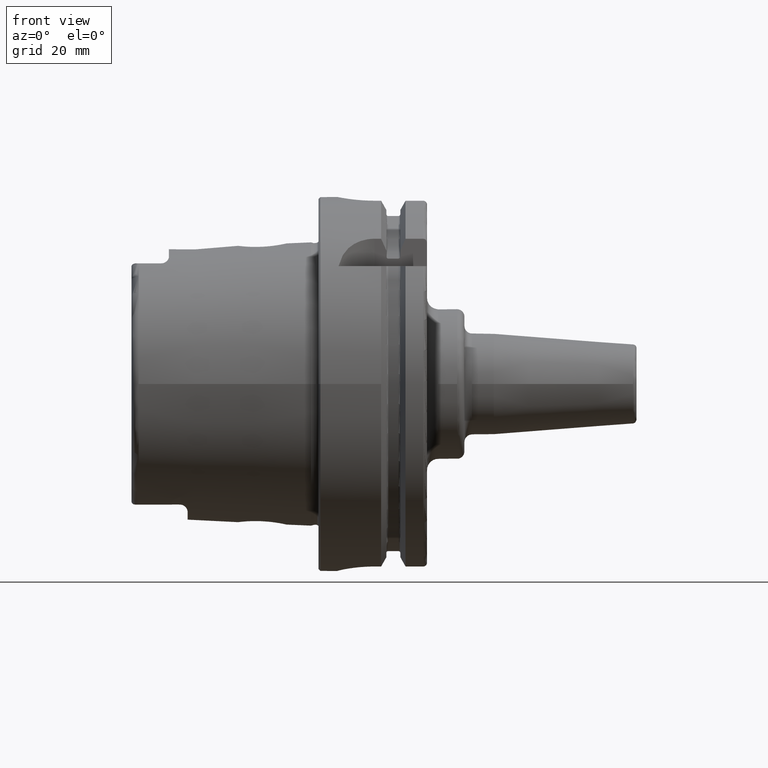
[diagram: clean part render]
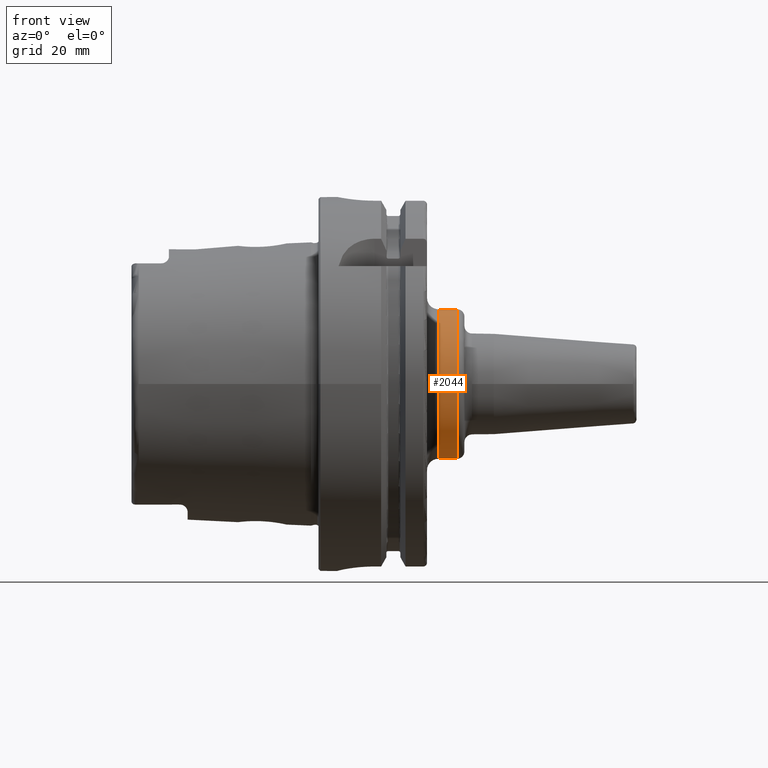
[diagram: same view with one face highlighted and labeled with its STEP entity id]
A machine part, front view. The second image highlights one B-rep face of the part: STEP entity #2044.
In plain terms, the highlighted cylindrical surface (bore or boss wall) has radius 20 mm, axis along (1, 0, 0).
Its self-contained STEP definition (entity closure, byte-faithful):
#180=CYLINDRICAL_SURFACE('',#2212,20.);
#226=FACE_OUTER_BOUND('',#353,.T.);
#353=EDGE_LOOP('',(#1419,#1420,#1421,#1422,#1423,#1424));
#480=LINE('',#3164,#587);
#587=VECTOR('',#2529,20.);
#705=CIRCLE('',#2210,20.);
#706=CIRCLE('',#2211,20.);
#707=CIRCLE('',#2213,20.);
#708=CIRCLE('',#2214,20.);
#845=VERTEX_POINT('',#3157);
#846=VERTEX_POINT('',#3159);
#847=VERTEX_POINT('',#3163);
#848=VERTEX_POINT('',#3165);
#1066=EDGE_CURVE('',#845,#846,#705,.T.);
#1067=EDGE_CURVE('',#846,#845,#706,.T.);
#1068=EDGE_CURVE('',#846,#847,#480,.T.);
#1069=EDGE_CURVE('',#848,#847,#707,.T.);
#1070=EDGE_CURVE('',#847,#848,#708,.T.);
#1419=ORIENTED_EDGE('',*,*,#1067,.F.);
#1420=ORIENTED_EDGE('',*,*,#1068,.T.);
#1421=ORIENTED_EDGE('',*,*,#1069,.F.);
#1422=ORIENTED_EDGE('',*,*,#1070,.F.);
#1423=ORIENTED_EDGE('',*,*,#1068,.F.);
#1424=ORIENTED_EDGE('',*,*,#1066,.F.);
#2044=ADVANCED_FACE('',(#226),#180,.T.);
#2210=AXIS2_PLACEMENT_3D('',#3160,#2523,#2524);
#2211=AXIS2_PLACEMENT_3D('',#3161,#2525,#2526);
#2212=AXIS2_PLACEMENT_3D('',#3162,#2527,#2528);
#2213=AXIS2_PLACEMENT_3D('',#3166,#2530,#2531);
#2214=AXIS2_PLACEMENT_3D('',#3167,#2532,#2533);
#2523=DIRECTION('center_axis',(1.,0.,0.));
#2524=DIRECTION('ref_axis',(0.,-1.,1.83697019872103E-16));
#2525=DIRECTION('center_axis',(1.,0.,0.));
#2526=DIRECTION('ref_axis',(0.,-1.,1.83697019872103E-16));
#2527=DIRECTION('center_axis',(1.,0.,0.));
#2528=DIRECTION('ref_axis',(0.,1.,0.));
#2529=DIRECTION('',(-1.,0.,0.));
#2530=DIRECTION('center_axis',(-1.,0.,0.));
#2531=DIRECTION('ref_axis',(0.,-1.,-1.22464679914735E-16));
#2532=DIRECTION('center_axis',(-1.,0.,0.));
#2533=DIRECTION('ref_axis',(0.,-1.,-1.22464679914735E-16));
#3157=CARTESIAN_POINT('',(37.,-2.44929359829471E-15,20.));
#3159=CARTESIAN_POINT('',(37.,-20.,-2.44929359829471E-15));
#3160=CARTESIAN_POINT('Origin',(37.,0.,0.));
#3161=CARTESIAN_POINT('Origin',(37.,0.,0.));
#3162=CARTESIAN_POINT('Origin',(34.,0.,0.));
#3163=CARTESIAN_POINT('',(32.,-20.,-2.44929359829471E-15));
#3164=CARTESIAN_POINT('',(34.,-20.,-2.44929359829471E-15));
#3165=CARTESIAN_POINT('',(32.,-2.44929359829471E-15,-20.));
#3166=CARTESIAN_POINT('Origin',(32.,0.,0.));
#3167=CARTESIAN_POINT('Origin',(32.,0.,0.));